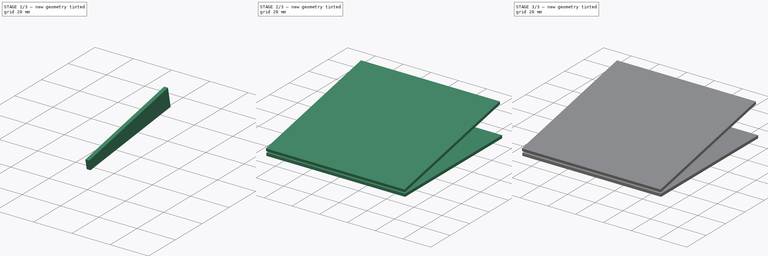
[diagram: build sequence overview — one tinted view per stage of 3, left to right]
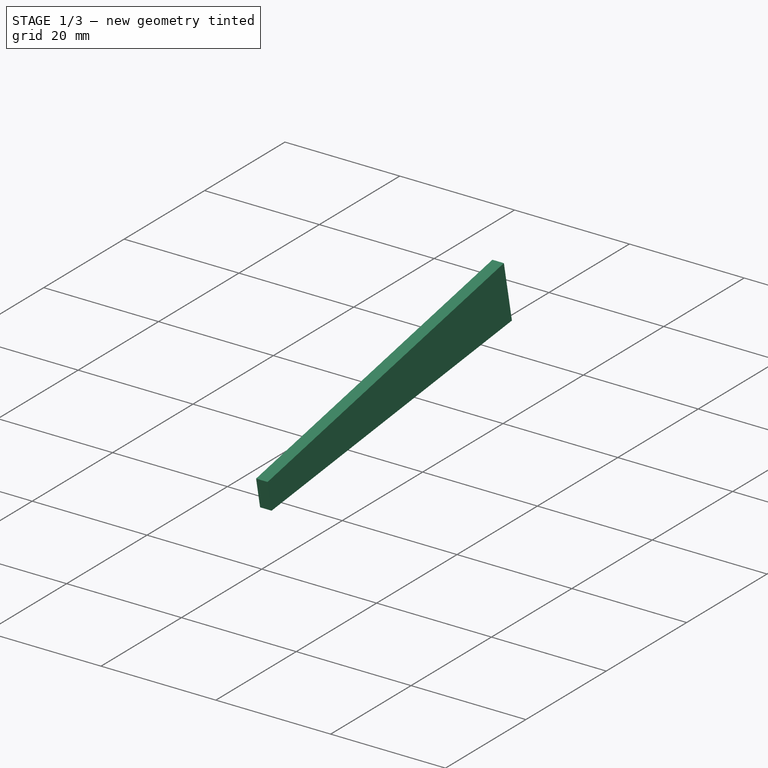
[diagram: stage 1 of 3 — iso view after this stage's code; geometry added in this stage tinted green]
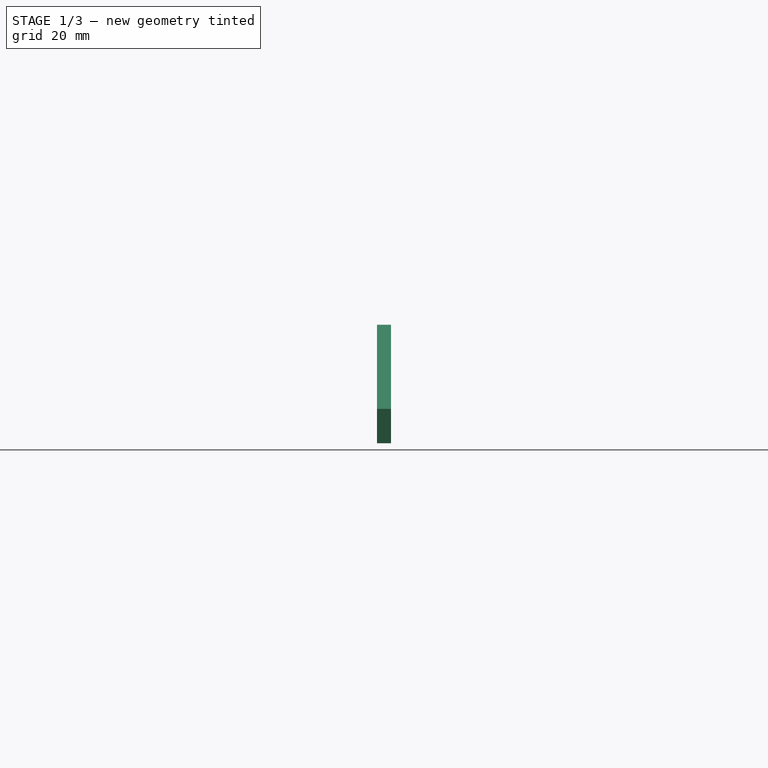
[diagram: stage 1 of 3 — front view after this stage's code; geometry added in this stage tinted green]
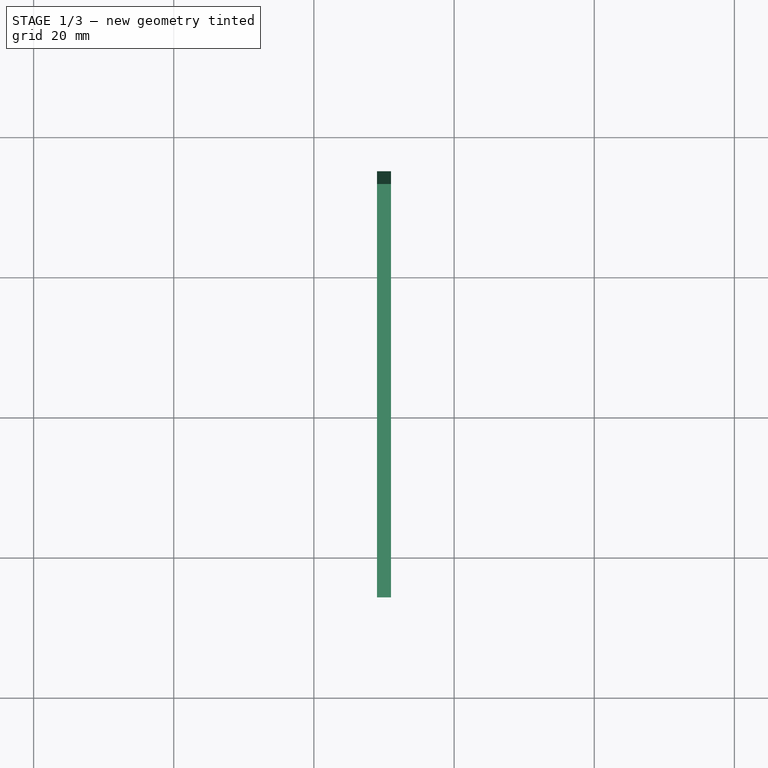
[diagram: stage 1 of 3 — top view after this stage's code; geometry added in this stage tinted green]
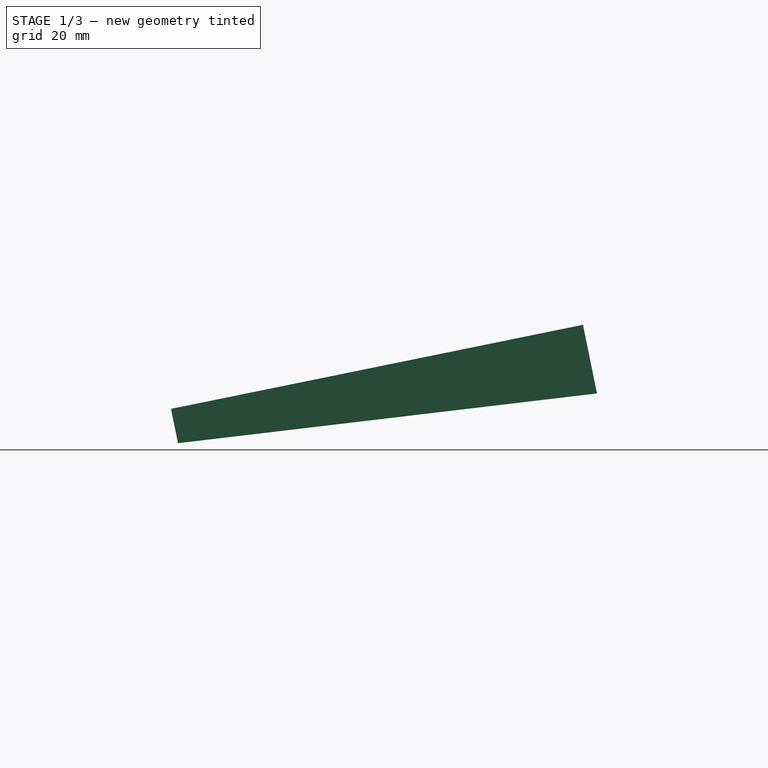
[diagram: stage 1 of 3 — right view after this stage's code; geometry added in this stage tinted green]
FCSTD DOCUMENT  (FreeCAD 2020.12.03R23076 +2885 (Git))
Label: Modular Ramp v3 MasterSketch
License: All rights reserved
LicenseURL: http://en.wikipedia.org/wiki/All_rights_reserved
objects: Sketcher::SketchObject×7, PartDesign::Pad×4, PartDesign::Body×2, PartDesign::Plane×2, PartDesign::Pocket×2
note: 29 computed .brp shape members not serialized (recipe doc carries the construction recipe); baked Part::Feature solids carry a one-line shape summary decoded from their .brp

FEATURE [Sketcher::SketchObject] Sketch
  MapMode = 5
  Placement = pos=(0,0,0) rot=(0.57735,0.57735,0.57735;2.0944rad)
  Support = -> [YZ_Plane001]
  sketch-geometry (17):
    g0: Circle [constr] CenterX=0 CenterY=0 CenterZ=0 NormalX=0 NormalY=0 NormalZ=1 AngleXU=0 Radius=125
    g1: LineSegment StartX=0 StartY=0 StartZ=0 EndX=125 EndY=0 EndZ=0
    g2: LineSegment StartX=0 StartY=0 StartZ=0 EndX=122.474 EndY=25 EndZ=0
    g3: ArcOfCircle CenterX=0 CenterY=0 CenterZ=0 NormalX=0 NormalY=0 NormalZ=1 AngleXU=0 Radius=25 StartAngle=0 EndAngle=0.201358
    g4: GeomPoint X=24.4949 Y=5 Z=0
    g5: GeomPoint X=25 Y=0 Z=0
    g6: LineSegment [constr] StartX=125 StartY=0 StartZ=0 EndX=25 EndY=0 EndZ=0
    g7: LineSegment [constr] StartX=25 StartY=0 StartZ=0 EndX=25 EndY=2 EndZ=0
    g8: LineSegment [constr] StartX=25 StartY=2 StartZ=0 EndX=125 EndY=2 EndZ=0
    g9: LineSegment [constr] StartX=125 StartY=2 StartZ=0 EndX=125 EndY=0 EndZ=0
    g10: LineSegment [constr] StartX=122.474 StartY=25 StartZ=0 EndX=122.874 EndY=23.0404 EndZ=0
    g11: LineSegment [constr] StartX=24.8949 StartY=3.04041 StartZ=0 EndX=122.874 EndY=23.0404 EndZ=0
    g12: LineSegment [constr] StartX=24.8949 StartY=3.04041 StartZ=0 EndX=24.4949 EndY=5 EndZ=0
    g13: Circle [constr] CenterX=24.8734 CenterY=2.51272 CenterZ=0 NormalX=0 NormalY=0 NormalZ=1 AngleXU=0 Radius=7.4513
    g14: Circle [constr] CenterX=24.8734 CenterY=2.51272 CenterZ=0 NormalX=0 NormalY=0 NormalZ=1 AngleXU=0 Radius=2.51591
    g15: LineSegment [constr] StartX=0 StartY=0 StartZ=0 EndX=29.8481 EndY=3.01527 EndZ=0
    g16: Circle [constr] CenterX=27.3766 CenterY=2.7656 CenterZ=0 NormalX=0 NormalY=0 NormalZ=1 AngleXU=0 Radius=1
  constraints (45):
    c: Coincident(g1,g-1)
    c: PointOnObject(g1,g0)
    c: Horizontal(g1)
    c: Coincident(g2,g1)
    c: PointOnObject(g2,g0)
    c: DistanceY(g1,g2) = 25
    c: Coincident(g0,g1)
    c: Coincident(g3,g1)
    c: PointOnObject(g4,g2)
    c: PointOnObject(g5,g1)
    c: PointOnObject(g5,g3)
    c: PointOnObject(g4,g3)
    c: DistanceY(g5,g4) = 5
    c: PointOnObject(g3,g1)
    c: PointOnObject(g3,g2)
    c: DistanceX(g3,g1) = 100
    c: Coincident(g6,g7)
    c: Coincident(g7,g8)
    c: Coincident(g8,g9)
    c: Coincident(g9,g6)
    c: Horizontal(g8)
    c: Vertical(g7)
    c: Vertical(g9)
    c: Coincident(g6,g1)
    c: Coincident(g6,g3)
    c: Coincident(g10,g2)
    c: Coincident(g11,g10)
    c: Coincident(g12,g11)
    c: PointOnObject(g12,g2)
    c: Perpendicular(g2,g10)
    c: Perpendicular(g11,g10)
    c: Perpendicular(g11,g12)
    c: Distance(g10) = 2
    c: Distance(g11) = 100
    c: Distance(g9) = 2
    c: PointOnObject(g13,g3)
    c: Coincident(g14,g13)
    c: PointOnObject(g3,g14)
    c: PointOnObject(g3,g14)
    c: Coincident(g15,g1)
    c: PointOnObject(g13,g15)
    c: Distance(g13,g15) = 5
    c: PointOnObject(g16,g15)
    c: PointOnObject(g16,g14)
    c: Diameter(g16) = 2
FEATURE [Sketcher::SketchObject] Sketch001
  ExternalGeometry = -> [Sketch]
  MapMode = 5
  Placement = pos=(0,0,0) rot=(0.57735,0.57735,0.57735;2.0944rad)
  Support = -> [YZ_Plane]
  sketch-geometry (4):
    g0: LineSegment StartX=24.4949 StartY=5 StartZ=0 EndX=24.8949 EndY=3.04041 EndZ=0
    g1: LineSegment StartX=24.8949 StartY=3.04041 StartZ=0 EndX=122.874 EndY=23.0404 EndZ=0
    g2: LineSegment StartX=122.474 StartY=25 StartZ=0 EndX=122.874 EndY=23.0404 EndZ=0
    g3: LineSegment StartX=24.4949 StartY=5 StartZ=0 EndX=122.474 EndY=25 EndZ=0
  constraints (10):
    c: Coincident(g0,g-3)
    c: Coincident(g1,g0)
    c: Perpendicular(g-4,g0)
    c: Distance(g0) = 2
    c: Coincident(g2,g-4)
    c: Perpendicular(g-4,g2)
    c: Coincident(g1,g2)
    c: Parallel(g-4,g1)
    c: Coincident(g3,g0)
    c: Coincident(g3,g2)
FEATURE [PartDesign::Pad] Pad
  ClaimChildren = false
  Direction = (1,1,1)
  Fit = 0
  FitJoin = 0
  InnerFit = 0
  InnerFitJoin = 0
  InnerTaperAngle = 0
  InnerTaperAngleRev = 0
  Length = 100
  Length2 = 100
  Midplane = true
  NewSolid = false
  Placement = pos=(0,0,0) rot=(0.57735,0.57735,0.57735;2.0944rad)
  Profile = -> Sketch001
  Suppress = false
  Type = 0
FEATURE [PartDesign::Body] Body001  label="BodyLower"
  ExportMode = 0
  Group = -> [Sketch]
  Origin = -> Origin001
  _ExportChildren = -> [Sketch]
  _GroupVersion = 1
FEATURE [Sketcher::SketchObject] Sketch003
  ExternalGeometry = -> [Sketch]
  MapMode = 5
  Placement = pos=(0,0,0) rot=(0.57735,0.57735,0.57735;2.0944rad)
  Support = -> [YZ_Plane]
  sketch-geometry (4):
    g0: LineSegment StartX=25 StartY=0 StartZ=0 EndX=125 EndY=7e-15 EndZ=0
    g1: LineSegment StartX=125 StartY=7e-15 StartZ=0 EndX=125 EndY=2 EndZ=0
    g2: LineSegment StartX=125 StartY=2 StartZ=0 EndX=25 EndY=2 EndZ=0
    g3: LineSegment StartX=25 StartY=2 StartZ=0 EndX=25 EndY=0 EndZ=0
  constraints (10):
    c: Coincident(g0,g1)
    c: Coincident(g1,g2)
    c: Coincident(g2,g3)
    c: Coincident(g3,g0)
    c: Horizontal(g2)
    c: Vertical(g1)
    c: Vertical(g3)
    c: Coincident(g0,g-4)
    c: Coincident(g0,g-3)
    c: DistanceY(g0,g1) = 2
FEATURE [PartDesign::Pad] Pad001
  BaseFeature = -> Pad
  ClaimChildren = false
  Direction = (1,1,1)
  Fit = 0
  FitJoin = 0
  InnerFit = 0
  InnerFitJoin = 0
  InnerTaperAngle = 0
  InnerTaperAngleRev = 0
  Length = 100
  Length2 = 100
  Midplane = true
  NewSolid = false
  Placement = pos=(0,0,0) rot=(0.57735,0.57735,0.57735;2.0944rad)
  Profile = -> Sketch003
  Suppress = false
  Type = 0
  expr: Length = Pad.Length
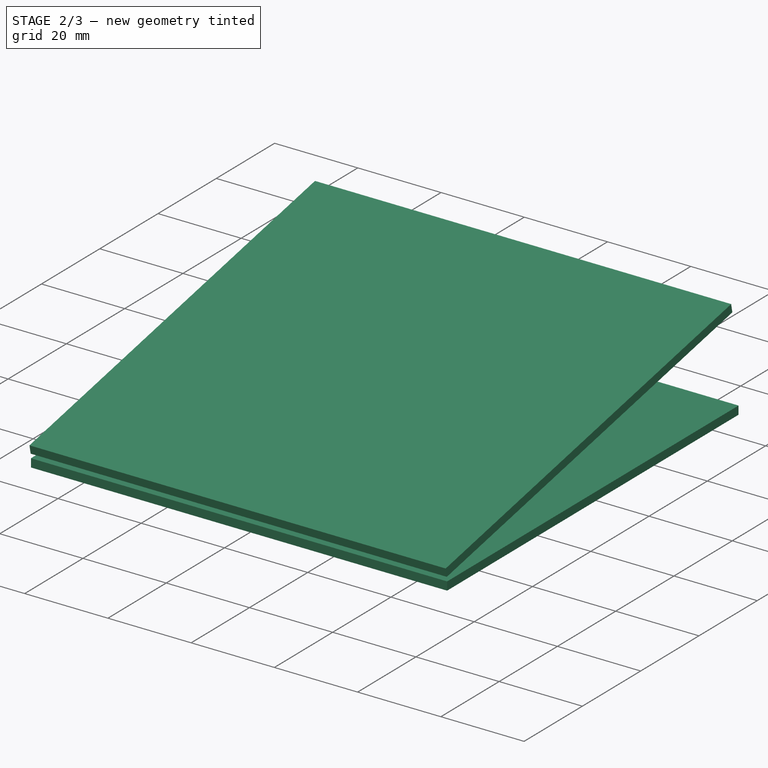
[diagram: stage 2 of 3 — iso view after this stage's code; geometry added in this stage tinted green]
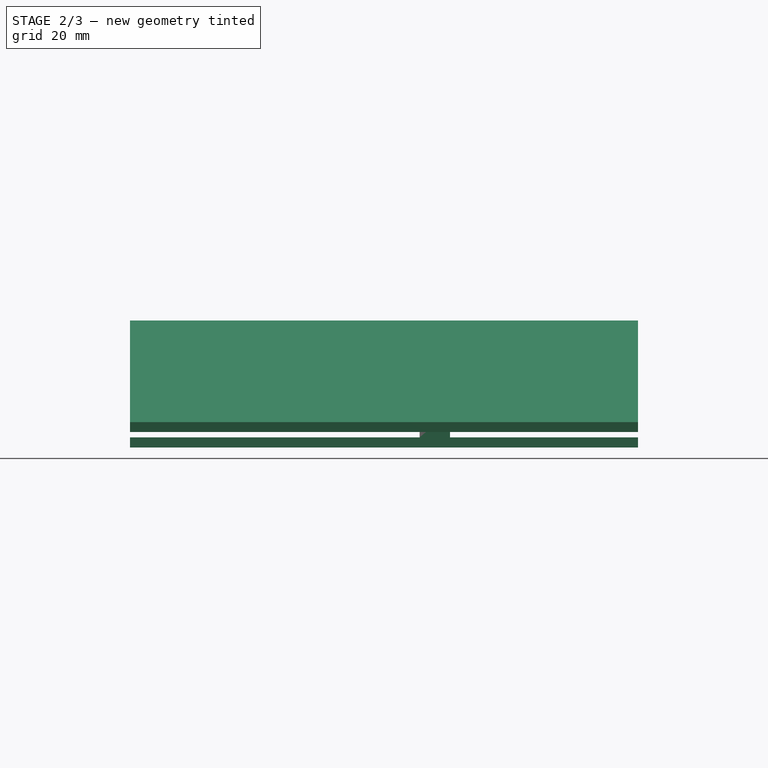
[diagram: stage 2 of 3 — front view after this stage's code; geometry added in this stage tinted green]
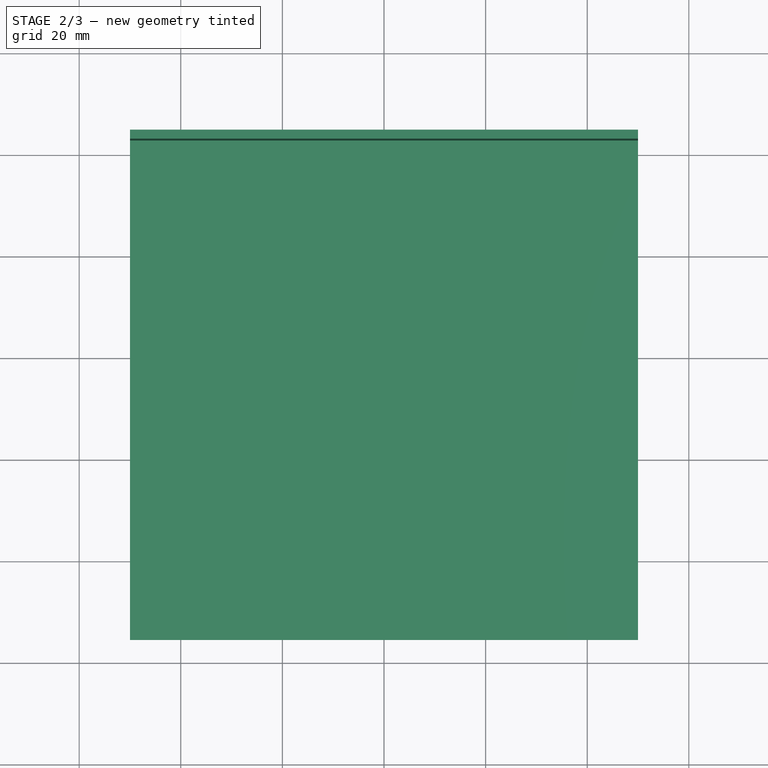
[diagram: stage 2 of 3 — top view after this stage's code; geometry added in this stage tinted green]
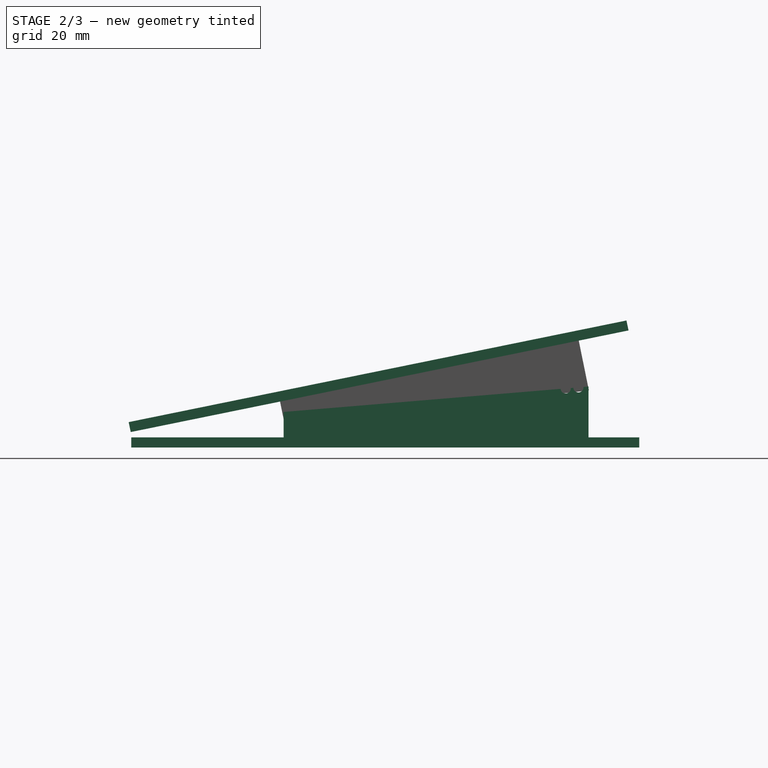
[diagram: stage 2 of 3 — right view after this stage's code; geometry added in this stage tinted green]
FEATURE [PartDesign::Plane] DatumPlane
  Length = 100
  ResizeMode = 0
  Width = 125
FEATURE [PartDesign::Plane] DatumPlane001  label="DatumPlaneRib"
  AttachmentOffset = pos=(0,0,10) rot=(0,0,1;0rad)
  Length = 125
  MapMode = 5
  Placement = pos=(10,-2.2e-15,2.2e-15) rot=(0.57735,0.57735,0.57735;2.0944rad)
  ResizeMode = 0
  Support = -> [YZ_Plane]
  Width = 25
FEATURE [Sketcher::SketchObject] Sketch004
  ExternalGeometry = -> [Pad001]
  MapMode = 5
  Placement = pos=(10,-2.2e-15,2.2e-15) rot=(0.57735,0.57735,0.57735;2.0944rad)
  Support = -> [DatumPlane001]
  sketch-geometry (4):
    g0: LineSegment StartX=54.2888 StartY=9.04041 StartZ=0 EndX=55.2888 EndY=4.14143 EndZ=0
    g1: LineSegment StartX=55.2888 StartY=4.14143 StartZ=0 EndX=115.077 EndY=11.2424 EndZ=0
    g2: LineSegment StartX=115.077 StartY=11.2424 StartZ=0 EndX=113.077 EndY=21.0404 EndZ=0
    g3: LineSegment StartX=113.077 StartY=21.0404 StartZ=0 EndX=54.2888 EndY=9.04041 EndZ=0
  constraints (12):
    c: PointOnObject(g0,g-3)
    c: Coincident(g0,g1)
    c: Coincident(g1,g2)
    c: PointOnObject(g2,g-3)
    c: Coincident(g2,g3)
    c: Coincident(g3,g0)
    c: Perpendicular(g-3,g0)
    c: Perpendicular(g2,g-3)
    c: Distance(g-3,g2) = 10
    c: Distance(g0,g-3) = 30
    c: Distance(g0,g0) = 5
    c: Distance(g1,g2) = 10
FEATURE [Sketcher::SketchObject] Sketch005
  MapMode = 5
  Placement = pos=(10,-2.2e-15,2.2e-15) rot=(0.57735,0.57735,0.57735;2.0944rad)
  Support = -> [DatumPlane001]
  sketch-geometry (4):
    g0: LineSegment StartX=55 StartY=2 StartZ=0 EndX=55 EndY=7 EndZ=0
    g1: LineSegment StartX=55 StartY=7 StartZ=0 EndX=115 EndY=12 EndZ=0
    g2: LineSegment StartX=115 StartY=12 StartZ=0 EndX=115 EndY=2 EndZ=0
    g3: LineSegment StartX=115 StartY=2 StartZ=0 EndX=55 EndY=2 EndZ=0
  constraints (9):
    c: Coincident(g0,g1)
    c: Coincident(g1,g2)
    c: Vertical(g2)
    c: Coincident(g2,g3)
    c: Coincident(g3,g0)
    c: Perpendicular(g3,g0)
    c: Distance(g2,g1) = 10
    c: Distance(g0,g0) = 5
    c: DistanceY(g-1,g0) = 2
FEATURE [PartDesign::Pad] Pad003
  BaseFeature = -> Pad001
  ClaimChildren = false
  Direction = (1,1,1)
  Fit = 0
  FitJoin = 0
  InnerFit = 0
  InnerFitJoin = 0
  InnerTaperAngle = 0
  InnerTaperAngleRev = 0
  Length = 6
  Length2 = 100
  Midplane = true
  NewSolid = false
  Placement = pos=(0,0,0) rot=(0.57735,0.57735,0.57735;2.0944rad)
  Profile = -> Sketch005
  Suppress = false
  Type = 0
FEATURE [Sketcher::SketchObject] Sketch006
  ExternalGeometry = -> [Pad003]
  MapMode = 5
  Placement = pos=(10,-2.2e-15,2.2e-15) rot=(0.57735,0.57735,0.57735;2.0944rad)
  Support = -> [DatumPlane001]
  sketch-geometry (3):
    g0: Circle CenterX=113.007 CenterY=11.8339 CenterZ=0 NormalX=0 NormalY=0 NormalZ=1 AngleXU=0 Radius=1
    g1: Circle CenterX=110.516 CenterY=11.6263 CenterZ=0 NormalX=0 NormalY=0 NormalZ=1 AngleXU=0 Radius=1
    g2: GeomPoint X=114.003 Y=11.917 Z=0
  constraints (8):
    c: PointOnObject(g0,g-3)
    c: PointOnObject(g1,g-3)
    c: Diameter(g0) = 2
    c: Equal(g0,g1)
    c: PointOnObject(g2,g0)
    c: PointOnObject(g2,g-3)
    c: Distance(g0,g1) = 2.5
    c: Distance(g-3,g2) = 1
FEATURE [PartDesign::Pocket] Pocket
  BaseFeature = -> Pad003
  ClaimChildren = false
  Fit = 0
  FitJoin = 0
  InnerFit = 0
  InnerFitJoin = 0
  InnerTaperAngle = 0
  InnerTaperAngleRev = 0
  Length = 5
  Length2 = 100
  Midplane = true
  NewSolid = false
  Placement = pos=(0,0,0) rot=(0.57735,0.57735,0.57735;2.0944rad)
  Profile = -> Sketch006
  Suppress = false
  Type = 1
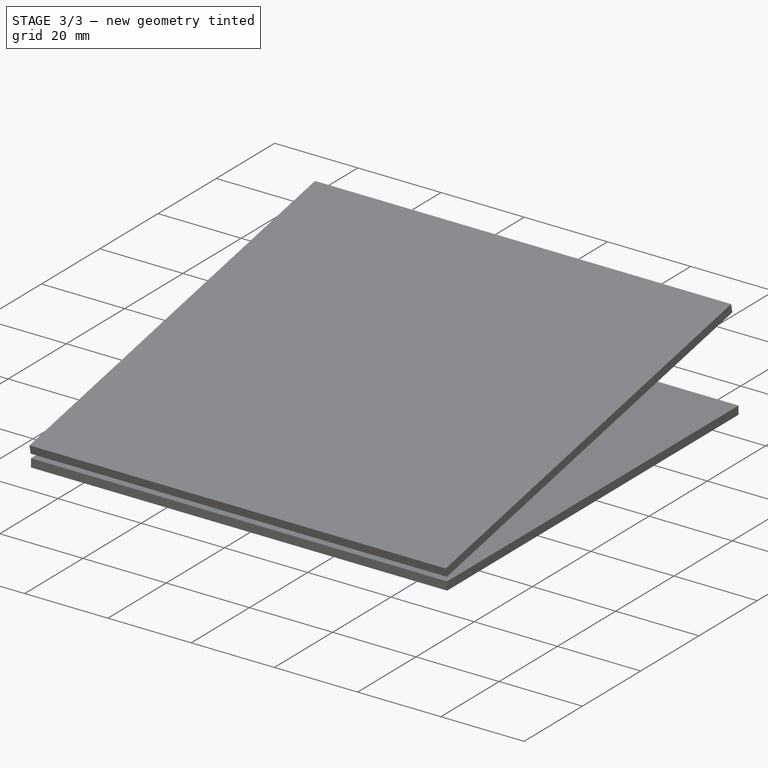
[diagram: stage 3 of 3 — iso view after this stage's code; geometry added in this stage tinted green]
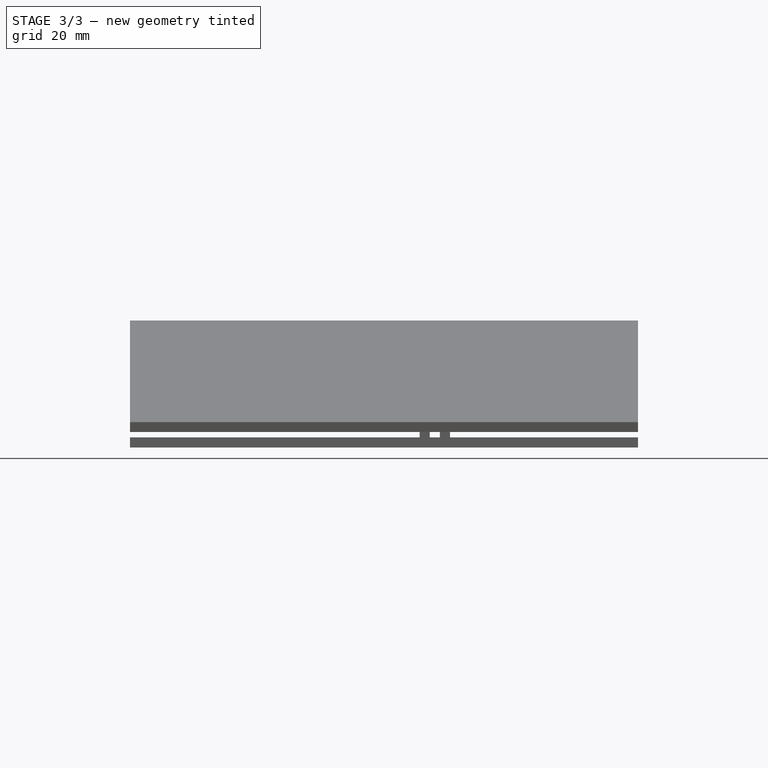
[diagram: stage 3 of 3 — front view after this stage's code; geometry added in this stage tinted green]
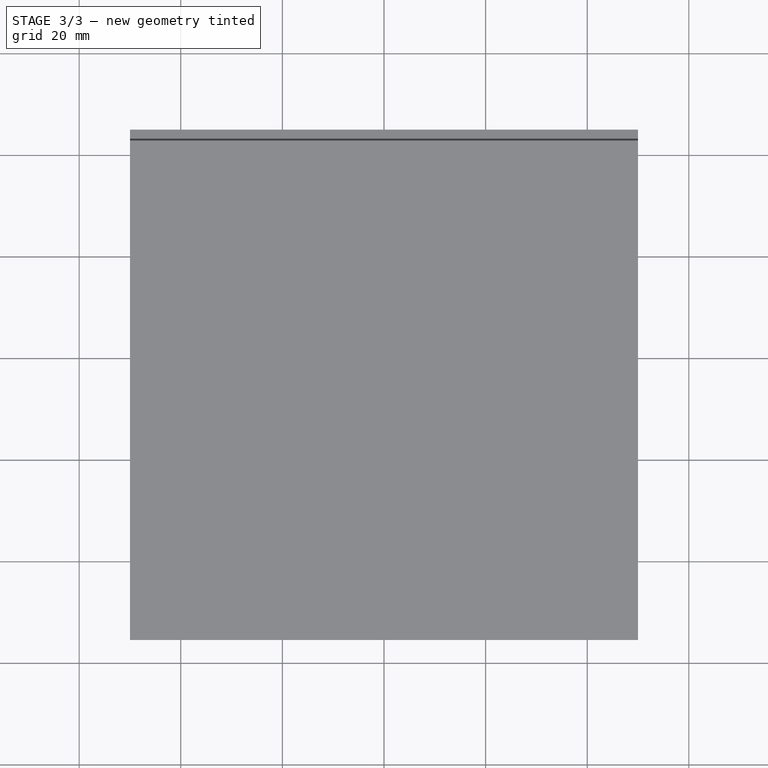
[diagram: stage 3 of 3 — top view after this stage's code; geometry added in this stage tinted green]
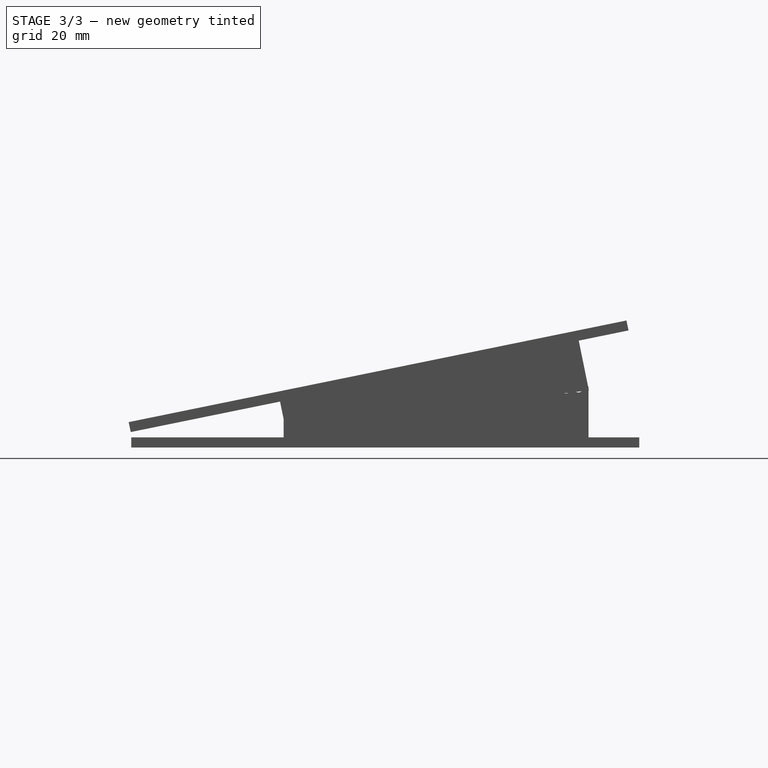
[diagram: stage 3 of 3 — right view after this stage's code; geometry added in this stage tinted green]
FEATURE [Sketcher::SketchObject] Sketch007
  MapMode = 5
  Placement = pos=(10,-2.2e-15,2.2e-15) rot=(0.57735,0.57735,0.57735;2.0944rad)
  Support = -> [DatumPlane001]
  expr: Constraints[6] = Sketch005.Constraints[6]
  expr: Constraints[7] = Sketch005.Constraints[7]
  expr: Constraints[8] = Sketch005.Constraints[8]
  sketch-geometry (4):
    g0: LineSegment StartX=55 StartY=2 StartZ=0 EndX=55 EndY=7 EndZ=0
    g1: LineSegment StartX=55 StartY=7 StartZ=0 EndX=115 EndY=12 EndZ=0
    g2: LineSegment StartX=115 StartY=12 StartZ=0 EndX=115 EndY=2 EndZ=0
    g3: LineSegment StartX=115 StartY=2 StartZ=0 EndX=55 EndY=2 EndZ=0
  constraints (9):
    c: Coincident(g0,g1)
    c: Coincident(g1,g2)
    c: Vertical(g2)
    c: Coincident(g2,g3)
    c: Coincident(g3,g0)
    c: Perpendicular(g3,g0)
    c: Distance(g2,g1) = 10
    c: Distance(g0,g0) = 5
    c: DistanceY(g-1,g0) = 2
FEATURE [PartDesign::Pocket] Pocket001
  BaseFeature = -> Pocket
  ClaimChildren = false
  Fit = 0
  FitJoin = 0
  InnerFit = 0
  InnerFitJoin = 0
  InnerTaperAngle = 0
  InnerTaperAngleRev = 0
  Length = 2
  Length2 = 100
  Midplane = true
  NewSolid = false
  Placement = pos=(0,0,0) rot=(0.57735,0.57735,0.57735;2.0944rad)
  Profile = -> Sketch007
  Suppress = false
  Type = 0
FEATURE [PartDesign::Pad] Pad002
  BaseFeature = -> Pocket001
  ClaimChildren = false
  Direction = (1,1,1)
  Fit = 0
  FitJoin = 0
  InnerFit = 0
  InnerFitJoin = 0
  InnerTaperAngle = 0
  InnerTaperAngleRev = 0
  Length = 2
  Length2 = 100
  Midplane = true
  NewSolid = false
  Placement = pos=(0,0,0) rot=(0.57735,0.57735,0.57735;2.0944rad)
  Profile = -> Sketch004
  Suppress = false
  Type = 0
FEATURE [PartDesign::Body] Body  label="BodyUpper"
  ExportMode = 0
  Group = -> [Sketch001,Pad,Sketch,Sketch003,Pad001,DatumPlane,DatumPlane001,Sketch004,Sketch005,Pad003,Pocket,Sketch007,Pocket001,Pad002,Sketch006]
  Origin = -> Origin
  Tip = -> Pad003
  _ExportChildren = -> [Pad,Sketch,Pad001,DatumPlane,DatumPlane001,Pad003,Pocket,Pocket001,Pad002]
  _GroupVersion = 1
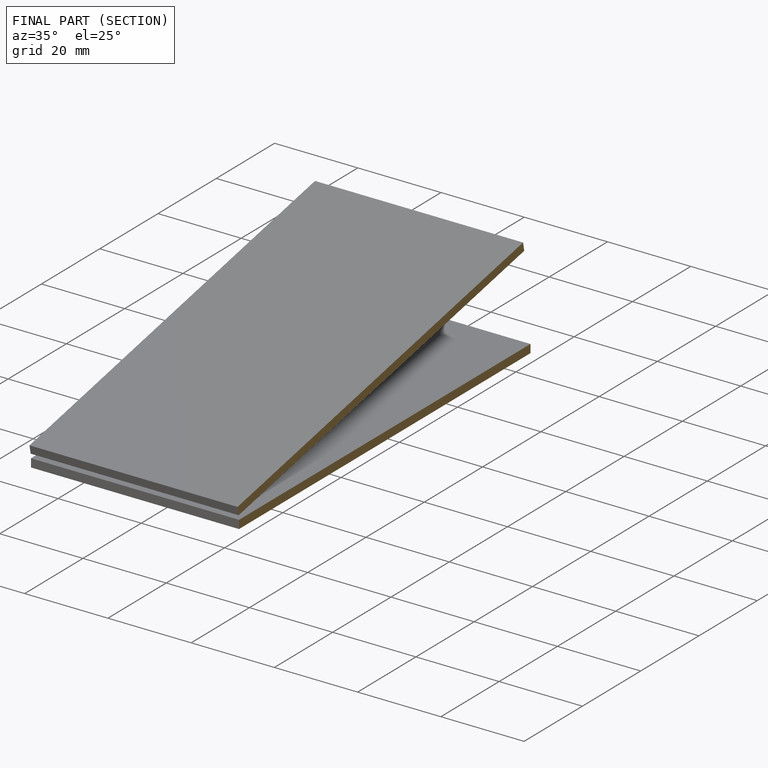
[diagram: finished part — half-section view (interior)]
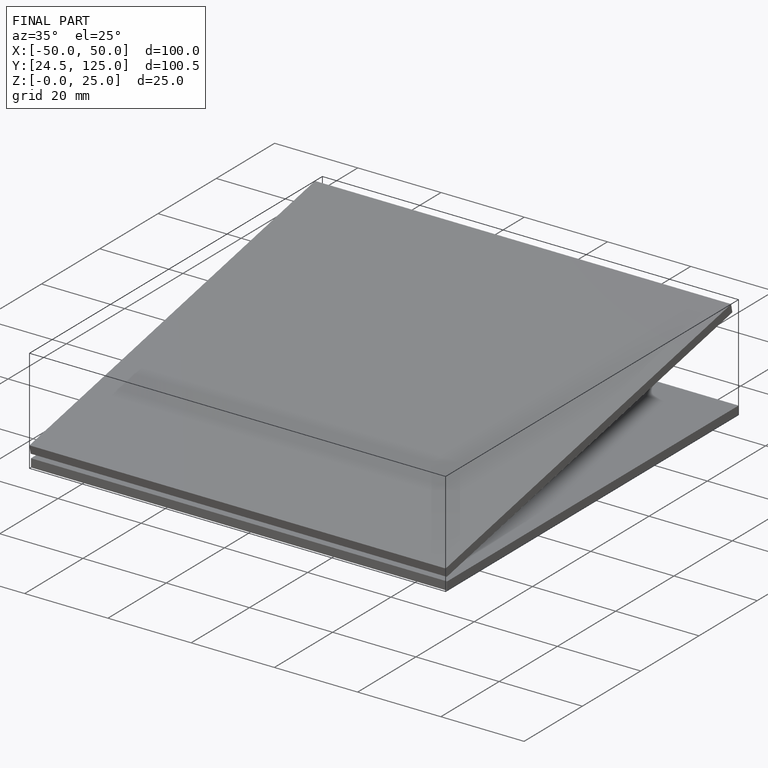
[diagram: finished part — iso view with bounding-box wireframe]
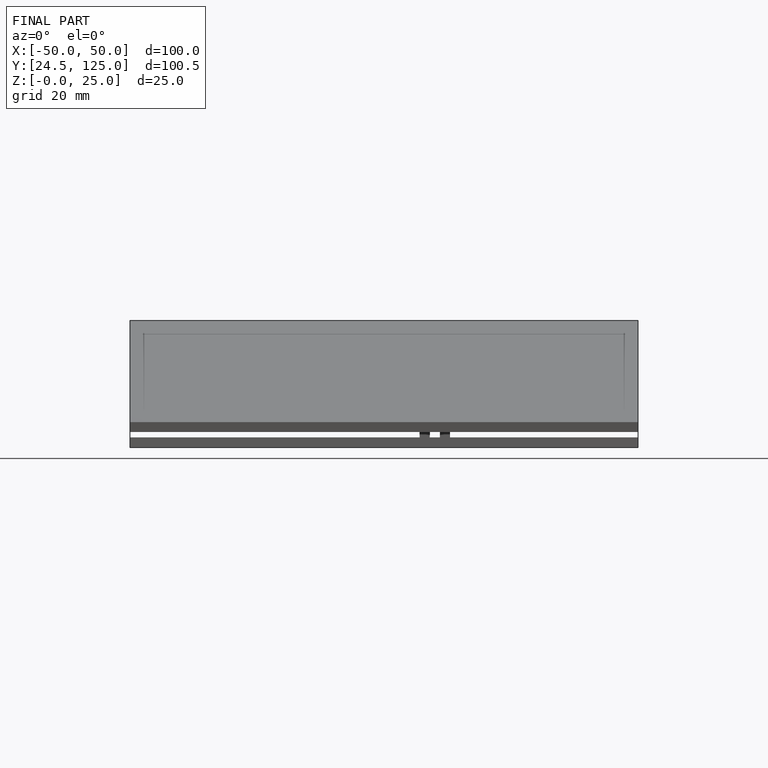
[diagram: finished part — front view with bounding-box wireframe]
